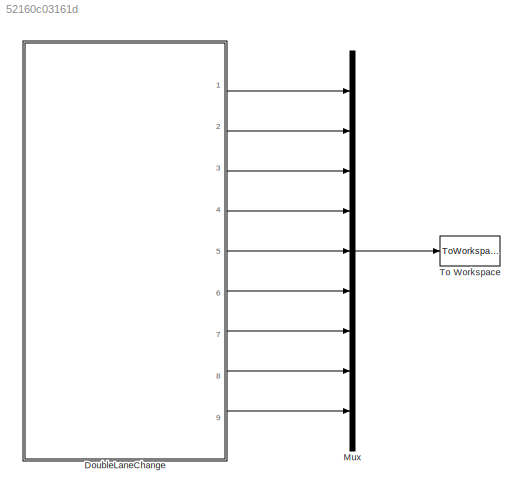
MODEL slx_52160c03161d
KIND model
CONFIG AbsTol = auto
CONFIG FixedStep = auto
CONFIG MaxStep = auto
CONFIG MinStep = auto
CONFIG RelTol = 1e-3
CONFIG SampleTimeConstraint = Unconstrained
CONFIG Solver = VariableStepAuto
CONFIG SolverMode = Auto
CONFIG SolverName = VariableStepAuto
CONFIG StartTime = 0.0
CONFIG StopTime = 10.0
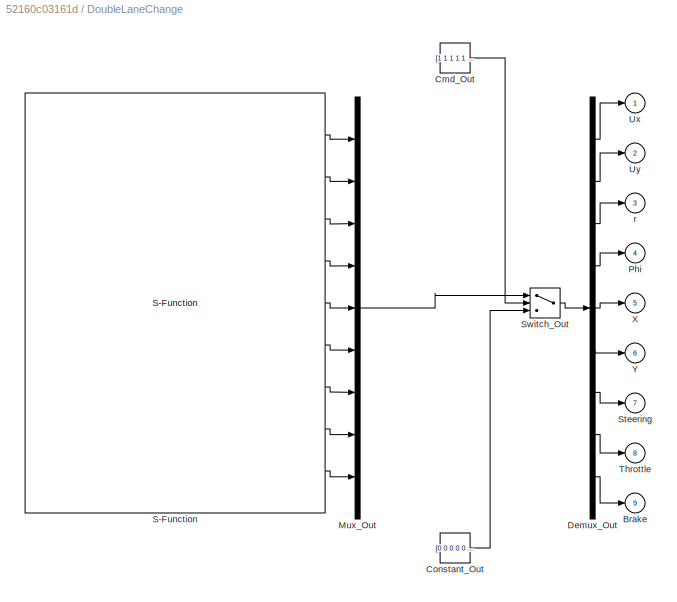
BLOCK [SubSystem] DoubleLaneChange
  DeleteFcn = AMESimLib_deleteBlock
  InitFcn = AMESimLib_initBlock
  OpenFcn = AMESimLib_openBlock('AME2SLCoSim')
  Ports = [0, 9]
  RequestExecContextInheritance = off
  ShowPortLabels = FromPortBlockName
  StartFcn = AMESimLib_startBlock
  StopFcn = AMESimLib_stopBlock
  Tag = AME2SLCoSim
  UserDataPersistent = on
  Variant = off
BLOCK [Outport] DoubleLaneChange/Brake
  IconDisplay = Port number
  Port = 9
BLOCK [Constant] DoubleLaneChange/Cmd_Out
  Value = [1 1 1 1 1 1 1 1 1]
BLOCK [Constant] DoubleLaneChange/Constant_Out
  Value = [0 0 0 0 0 0 0 0 0]
BLOCK [Demux] DoubleLaneChange/Demux_Out
  DisplayOption = bar
  Outputs = 9
  Ports = [1, 9]
BLOCK [Mux] DoubleLaneChange/Mux_Out
  DisplayOption = bar
  Inputs = 9
  Ports = [9, 1]
BLOCK [Outport] DoubleLaneChange/Phi
  IconDisplay = Port number
  Port = 4
BLOCK [S-Function] DoubleLaneChange/S-Function
  EnableBusSupport = off
  FunctionName = DoubleLaneChange_
  InitFcn = clear DoubleLaneChange_
  Parameters = [0.01;0.05;1e-05;1e+30;100;0;0;0;0;1;0.001;0;1] ['Grav           ';'Xg             ';'Zg             ';'Msprung        ';'Msteer         ';'Msp_front      ';'Mwh_front      ';'Msp_rear       ';'Mwh_rear       ';'Isprung_xx     ';'Isprung_yy     ';'Isprung_zz     ';'Isprung_xy     ';'Isprung_xz     ';'Isprung_yz     ';'Zref_front     ';'Zref_rear      ';'wheelbase      ';'track_front    ';'track_re...<+446ch>
  Ports = [0, 9]
  SFunctionDeploymentMode = off
  StopFcn = clear DoubleLaneChange_
BLOCK [Outport] DoubleLaneChange/Steering
  IconDisplay = Port number
  Port = 7
BLOCK [Switch] DoubleLaneChange/Switch_Out
  Threshold = 0.5
BLOCK [Outport] DoubleLaneChange/Throttle
  IconDisplay = Port number
  Port = 8
BLOCK [Outport] DoubleLaneChange/Ux
  IconDisplay = Port number
BLOCK [Outport] DoubleLaneChange/Uy
  IconDisplay = Port number
  Port = 2
BLOCK [Outport] DoubleLaneChange/X
  IconDisplay = Port number
  Port = 5
BLOCK [Outport] DoubleLaneChange/Y
  IconDisplay = Port number
  Port = 6
BLOCK [Outport] DoubleLaneChange/r
  IconDisplay = Port number
  Port = 3
BLOCK [Mux] Mux
  DisplayOption = bar
  Inputs = 9
  Ports = [9, 1]
BLOCK [ToWorkspace] To Workspace
  FixptAsFi = on
  MaxDataPoints = inf
  Ports = [1]
  SampleTime = -1
  Save2DSignal = 3-D array (concatenate along third dimension)
  SaveFormat = Timeseries
  VariableName = Trajectory
LINE DoubleLaneChange/Cmd_Out:1 -> DoubleLaneChange/Switch_Out:2
LINE DoubleLaneChange/Constant_Out:1 -> DoubleLaneChange/Switch_Out:3
LINE DoubleLaneChange/Demux_Out:1 -> DoubleLaneChange/Ux:1
LINE DoubleLaneChange/Demux_Out:2 -> DoubleLaneChange/Uy:1
LINE DoubleLaneChange/Demux_Out:3 -> DoubleLaneChange/r:1
LINE DoubleLaneChange/Demux_Out:4 -> DoubleLaneChange/Phi:1
LINE DoubleLaneChange/Demux_Out:5 -> DoubleLaneChange/X:1
LINE DoubleLaneChange/Demux_Out:6 -> DoubleLaneChange/Y:1
LINE DoubleLaneChange/Demux_Out:7 -> DoubleLaneChange/Steering:1
LINE DoubleLaneChange/Demux_Out:8 -> DoubleLaneChange/Throttle:1
LINE DoubleLaneChange/Demux_Out:9 -> DoubleLaneChange/Brake:1
LINE DoubleLaneChange/Mux_Out:1 -> DoubleLaneChange/Switch_Out:1
LINE DoubleLaneChange/S-Function:1 -> DoubleLaneChange/Mux_Out:1
LINE DoubleLaneChange/S-Function:2 -> DoubleLaneChange/Mux_Out:2
LINE DoubleLaneChange/S-Function:3 -> DoubleLaneChange/Mux_Out:3
LINE DoubleLaneChange/S-Function:4 -> DoubleLaneChange/Mux_Out:4
LINE DoubleLaneChange/S-Function:5 -> DoubleLaneChange/Mux_Out:5
LINE DoubleLaneChange/S-Function:6 -> DoubleLaneChange/Mux_Out:6
LINE DoubleLaneChange/S-Function:7 -> DoubleLaneChange/Mux_Out:7
LINE DoubleLaneChange/S-Function:8 -> DoubleLaneChange/Mux_Out:8
LINE DoubleLaneChange/S-Function:9 -> DoubleLaneChange/Mux_Out:9
LINE DoubleLaneChange/Switch_Out:1 -> DoubleLaneChange/Demux_Out:1
LINE DoubleLaneChange:1 -> Mux:1
LINE DoubleLaneChange:2 -> Mux:2
LINE DoubleLaneChange:3 -> Mux:3
LINE DoubleLaneChange:4 -> Mux:4
LINE DoubleLaneChange:5 -> Mux:5
LINE DoubleLaneChange:6 -> Mux:6
LINE DoubleLaneChange:7 -> Mux:7
LINE DoubleLaneChange:8 -> Mux:8
LINE DoubleLaneChange:9 -> Mux:9
LINE Mux:1 -> To Workspace:1
